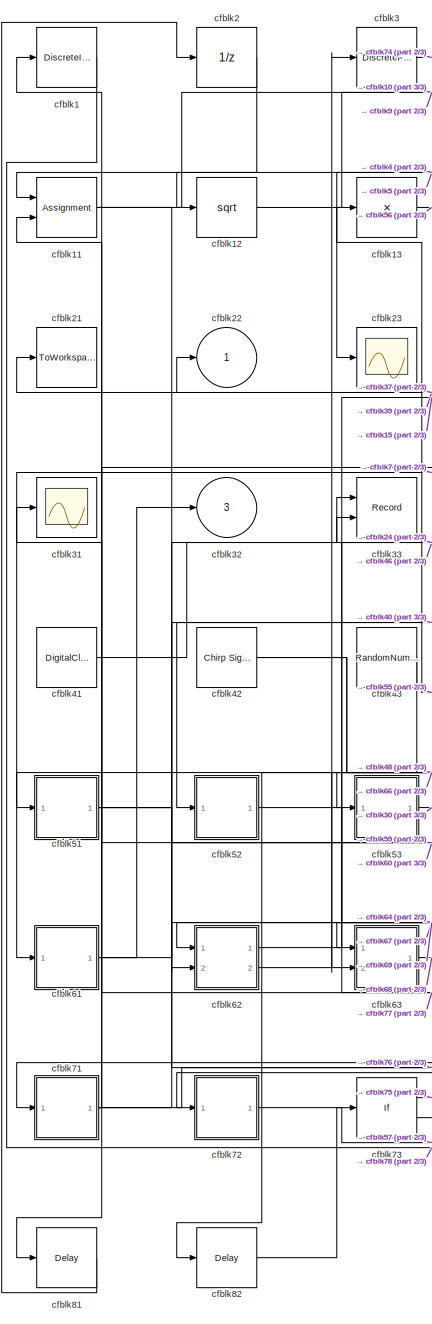
[diagram: root canvas - part 1/3, left side, full height]
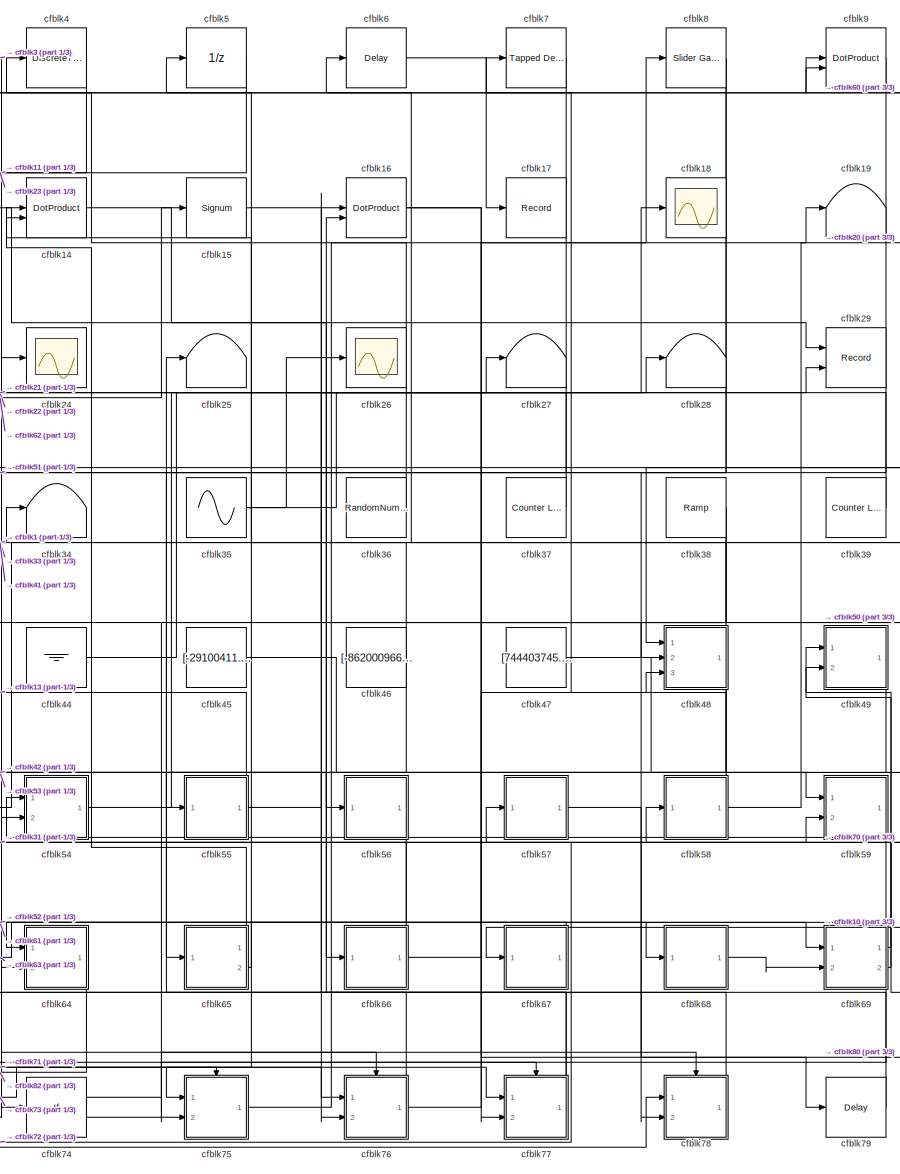
[diagram: root canvas - part 2/3, center side, full height]
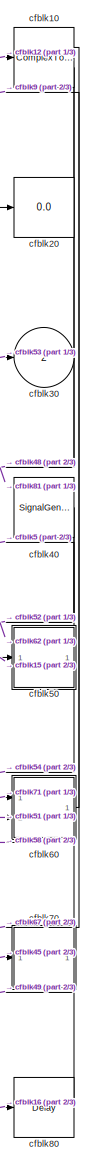
[diagram: root canvas - part 3/3, right side, full height]
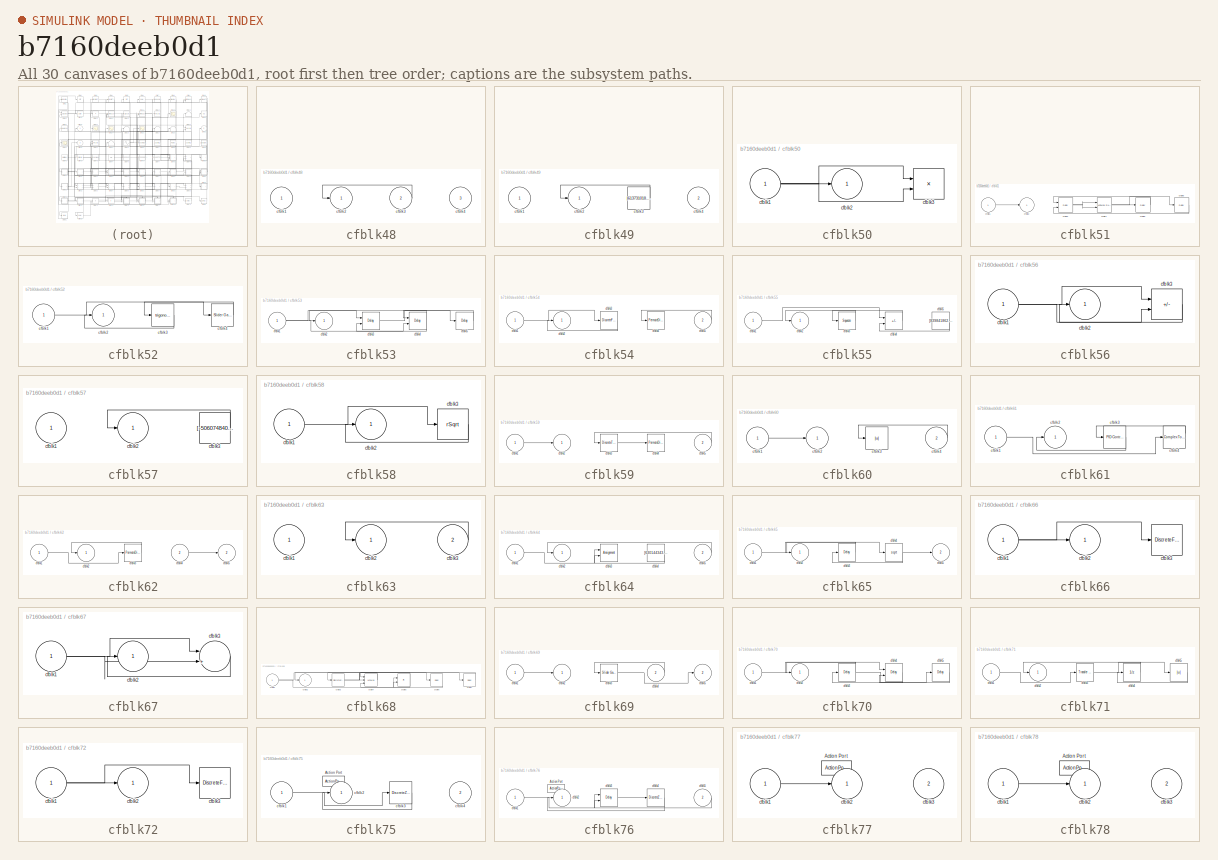
[diagram: thumbnail index - all 30 canvases of the model, root first then tree order]
MODEL slx_b7160deeb0d1
KIND model
CONFIG AbsTol = auto
CONFIG EnableMultiTasking = off
CONFIG FixedStep = auto
CONFIG MaxStep = auto
CONFIG MinStep = auto
CONFIG RelTol = 1e-3
CONFIG SampleTimeConstraint = Unconstrained
CONFIG SolverName = VariableStepAuto
CONFIG StartTime = 0.0
CONFIG StopTime = 10.0
BLOCK [DiscreteIntegrator] cfblk1
  ICPrevOutput = DiscIntNeverNeededParam
  ICPrevScaledInput = DiscIntNeverNeededParam
  InitialConditionSetting = Auto
  Ports = [1, 1]
BLOCK [ComplexToRealImag] cfblk10
  Ports = [1, 2]
BLOCK [Assignment] cfblk11
  DiagnosticForDimensions = Warning
  IndexOptions = Index vector (dialog)
  Indices = 1
  OutputSizes = 1
  Ports = [2, 1]
BLOCK [Sqrt] cfblk12
BLOCK [Product] cfblk13
  Inputs = *
  Ports = [1, 1]
BLOCK [DotProduct] cfblk14
  OutDataTypeStr = Inherit: Inherit via internal rule
BLOCK [Signum] cfblk15
BLOCK [DotProduct] cfblk16
  OutDataTypeStr = Inherit: Inherit via internal rule
BLOCK [Record] cfblk17
  FileSettingsInternal = {"entries":[{"content":{"excelSettings":{"content":{},"type":"Streamout.ExcelSettings"}},"type":"Streamout.FileSettingStorage","uuid":"fc1a8ae5-f9e8-4fe5-bdf4-1e206a54b291"}],"packageUris":["http://schema.mathworks.com/mf0/streamout_blocks/R2020a"],"version":"1.0"}
  Ports = [1]
  SignalsInternal = {"entries":[{"content":{"signals":[{"content":{"blockPath":["sampleModel187/cfblk17"],"channel":[],"dimensions":[1],"domain":"sampleModel187/cfblk17","lineColor":"#d95319","plots":[1],"port":1,"sid":[""],"signalID":7009,"signalName":"cfblk6"},"type":"RecordBlkView.Signal","uuid":"a0e15be2-1bcc-4cfc-9ff8-bd1e4d51e042"}]},"type":"RecordBlkView.InputSignals","uuid":"3d8c80d8-74ea-49cf-8dca-ff953d23ae...<+96ch>
  VisualizationBindings = {"sparklinesplugin":{"info":[{"bindingParametersList":[],"subplotID":1}]}}
BLOCK [Scope] cfblk18
  Floating = off
  NumInputPorts = 1
  Ports = [1]
BLOCK [Terminator] cfblk19
BLOCK [UnitDelay] cfblk2
  HasFrameUpgradeWarning = on
BLOCK [Display] cfblk20
  Decimation = 1
  Ports = [1]
BLOCK [ToWorkspace] cfblk21
  FixptAsFi = on
  MaxDataPoints = inf
  Ports = [1]
  SampleTime = -1
  SaveFormat = Timeseries
  VariableName = pqswixq
BLOCK [Outport] cfblk22
BLOCK [Scope] cfblk23
  Floating = off
  NumInputPorts = 1
  Ports = [1]
BLOCK [Scope] cfblk24
  Floating = off
  NumInputPorts = 1
  Ports = [1]
BLOCK [Terminator] cfblk25
BLOCK [Scope] cfblk26
  Floating = off
  NumInputPorts = 1
  Ports = [1]
BLOCK [Terminator] cfblk27
BLOCK [Terminator] cfblk28
BLOCK [Record] cfblk29
  CompatibilityTag = XY
  FileSettingsInternal = {"entries":[{"content":{"excelSettings":{"content":{},"type":"Streamout.ExcelSettings"}},"type":"Streamout.FileSettingStorage","uuid":"442cfed6-b428-4296-b731-16461bc16b9e"}],"packageUris":["http://schema.mathworks.com/mf0/streamout_blocks/R2020a"],"version":"1.0"}
  Layout = [1 1]
  Ports = [2]
  SignalsInternal = {"entries":[{"content":{"signals":[{"content":{"blockPath":["sampleModel187/cfblk29"],"channel":[],"dimensions":[1],"domain":"sampleModel187/cfblk29","lineColor":"#a2142f","plots":[1],"port":1,"sid":[""],"signalID":7013,"signalName":"cfblk14"},"type":"RecordBlkView.Signal","uuid":"7f7e597a-58f6-4f39-b89b-6fa5513463cd"},{"content":{"blockPath":["sampleModel187/cfblk29"],"channel":[],"dimensions":[1...<+383ch>
  VisualizationBindings = {"xyplotplugin":{"info":[{"series":[{"bindingParametersList":[{"parameter":"X-Axis","signalID":7013,"signalName":"cfblk14"},{"parameter":"Y-Axis","signalID":7017,"signalName":"cfblk35"}],"seriesID":40900}],"subplotID":1}]}}
BLOCK [DiscreteFir] cfblk3
  InputPortMap = u0
  OutputPortMap = o0
  Ports = [1, 1]
  SampleTime = 1
BLOCK [Outport] cfblk30
  Port = 2
BLOCK [Scope] cfblk31
  Floating = off
  NumInputPorts = 1
  Ports = [1]
BLOCK [Outport] cfblk32
  Port = 3
BLOCK [Record] cfblk33
  CompatibilityTag = XY
  FileSettingsInternal = {"entries":[{"content":{"excelSettings":{"content":{},"type":"Streamout.ExcelSettings"}},"type":"Streamout.FileSettingStorage","uuid":"6813dc0c-da85-4995-987b-cf181cce3f56"}],"packageUris":["http://schema.mathworks.com/mf0/streamout_blocks/R2020a"],"version":"1.0"}
  Layout = [1 1]
  Ports = [2]
  SignalsInternal = {"entries":[{"content":{"signals":[{"content":{"blockPath":["sampleModel187/cfblk33"],"channel":[],"dimensions":[1],"domain":"sampleModel187/cfblk33","lineColor":"#a2142f","plots":[1],"port":1,"sid":[""],"signalID":7021,"signalName":"cfblk51"},"type":"RecordBlkView.Signal","uuid":"0b49e028-e18d-4d9a-83a4-6c0870952cad"},{"content":{"blockPath":["sampleModel187/cfblk33"],"channel":[],"dimensions":[1...<+383ch>
  VisualizationBindings = {"xyplotplugin":{"info":[{"series":[{"bindingParametersList":[{"parameter":"X-Axis","signalID":7021,"signalName":"cfblk51"},{"parameter":"Y-Axis","signalID":7025,"signalName":"cfblk46"}],"seriesID":1856}],"subplotID":1}]}}
BLOCK [Terminator] cfblk34
BLOCK [Sin] cfblk35
  Amplitude = [317053556.111391]
  Bias = [742690337.513964]
  Ports = [0, 1]
  SampleTime = 0
BLOCK [RandomNumber] cfblk36
  Mean = [77071.071490]
  SampleTime = 0.1
  Seed = [984000208.000000]
  Variance = [36157.270666]
BLOCK [Reference] cfblk37  REF=simulink/Sources/Counter
Limited
  Ports = [0, 1]
  SourceBlock = simulink/Sources/Counter\nLimited
  SourceProductBaseCode = SL
  SourceType = Counter Limited
BLOCK [Reference] cfblk38  REF=simulink/Sources/Ramp
  Ports = [0, 1]
  SourceBlock = simulink/Sources/Ramp
  SourceProductBaseCode = SL
  SourceType = Ramp
BLOCK [Reference] cfblk39  REF=simulink/Sources/Counter
Limited
  Ports = [0, 1]
  SourceBlock = simulink/Sources/Counter\nLimited
  SourceProductBaseCode = SL
  SourceType = Counter Limited
BLOCK [DiscreteTransferFcn] cfblk4
  InputPortMap = u0
  Ports = [1, 1]
  SampleTime = 1
BLOCK [SignalGenerator] cfblk40
  Amplitude = [-571267794.185304]
  Ports = [0, 1]
  WaveForm = sawtooth
BLOCK [DigitalClock] cfblk41
BLOCK [Reference] cfblk42  REF=simulink/Sources/Chirp Signal
  Ports = [0, 1]
  SourceBlock = simulink/Sources/Chirp Signal
  SourceProductBaseCode = SL
  SourceType = chirp
BLOCK [RandomNumber] cfblk43
  Mean = [4117.333607]
  SampleTime = 0.1
  Seed = [309807594.000000]
  Variance = [38168.376727]
BLOCK [Ground] cfblk44
BLOCK [Constant] cfblk45
  SampleTime = 1
  Value = [-29100411.862656]
BLOCK [Constant] cfblk46
  SampleTime = 1
  Value = [-862000966.392325]
BLOCK [Constant] cfblk47
  SampleTime = 1
  Value = [744403745.632310]
BLOCK [SubSystem] cfblk48
  Ports = [3, 1]
  RequestExecContextInheritance = off
BLOCK [Inport] cfblk48/cfblk1
BLOCK [Outport] cfblk48/cfblk2
BLOCK [Inport] cfblk48/cfblk3
  Port = 2
BLOCK [Inport] cfblk48/cfblk4
  Port = 3
BLOCK [SubSystem] cfblk49
  Ports = [2, 1]
  RequestExecContextInheritance = off
BLOCK [Inport] cfblk49/cfblk1
BLOCK [Outport] cfblk49/cfblk2
BLOCK [Constant] cfblk49/cfblk3
  SampleTime = 1
  Value = [613731018.959351]
BLOCK [Inport] cfblk49/cfblk4
  Port = 2
BLOCK [UnitDelay] cfblk5
  HasFrameUpgradeWarning = on
BLOCK [SubSystem] cfblk50
  Ports = [1, 1]
  RequestExecContextInheritance = off
BLOCK [Inport] cfblk50/cfblk1
BLOCK [Outport] cfblk50/cfblk2
BLOCK [Product] cfblk50/cfblk3
  Inputs = **
  Ports = [2, 1]
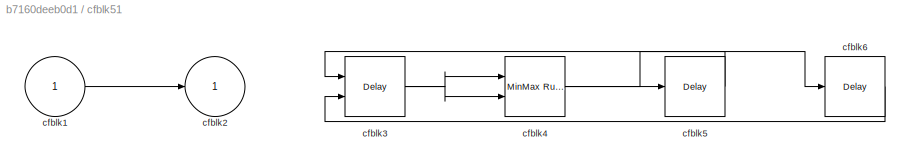
BLOCK [SubSystem] cfblk51
  Ports = [1, 1]
  RequestExecContextInheritance = off
BLOCK [Inport] cfblk51/cfblk1
BLOCK [Outport] cfblk51/cfblk2
BLOCK [Delay] cfblk51/cfblk3
  DelayLengthSource = Input port
  InputPortMap = u0,p1
  Ports = [2, 1]
  SampleTime = 1
BLOCK [Reference] cfblk51/cfblk4  REF=simulink/Math
Operations/MinMax
Running
Resettable
  Ports = [2, 1]
  SourceBlock = simulink/Math\nOperations/MinMax\nRunning\nResettable
  SourceProductBaseCode = SL
  SourceType = MinMax Running Resettable
BLOCK [Delay] cfblk51/cfblk5
  InputPortMap = u0
  Ports = [1, 1]
  SampleTime = 1
BLOCK [Delay] cfblk51/cfblk6
  InputPortMap = u0
  Ports = [1, 1]
  SampleTime = 1
BLOCK [SubSystem] cfblk52
  Ports = [1, 1]
  RequestExecContextInheritance = off
BLOCK [Inport] cfblk52/cfblk1
BLOCK [Outport] cfblk52/cfblk2
BLOCK [Trigonometry] cfblk52/cfblk3
  Ports = [1, 1]
BLOCK [Reference] cfblk52/cfblk4  REF=simulink/Math
Operations/Slider
Gain
  Ports = [1, 1]
  SourceBlock = simulink/Math\nOperations/Slider\nGain
  SourceProductBaseCode = SL
  SourceType = Slider Gain
BLOCK [SubSystem] cfblk53
  Ports = [1, 1]
  RequestExecContextInheritance = off
BLOCK [Inport] cfblk53/cfblk1
BLOCK [Outport] cfblk53/cfblk2
BLOCK [Delay] cfblk53/cfblk3
  InputPortMap = u0,e6
  Ports = [2, 1]
  SampleTime = 1
  ShowEnablePort = on
BLOCK [Delay] cfblk53/cfblk4
  InputPortMap = u0,e6
  Ports = [2, 1]
  SampleTime = 1
  ShowEnablePort = on
BLOCK [Delay] cfblk53/cfblk5
  InputPortMap = u0
  Ports = [1, 1]
  SampleTime = 1
BLOCK [SubSystem] cfblk54
  Ports = [2, 1]
  RequestExecContextInheritance = off
BLOCK [Inport] cfblk54/cfblk1
BLOCK [Outport] cfblk54/cfblk2
BLOCK [DiscreteFilter] cfblk54/cfblk3
  InputPortMap = u0
  Ports = [1, 1]
  SampleTime = 1
BLOCK [PermuteDimensions] cfblk54/cfblk4
BLOCK [Inport] cfblk54/cfblk5
  Port = 2
BLOCK [SubSystem] cfblk55
  Ports = [1, 1]
  RequestExecContextInheritance = off
BLOCK [Inport] cfblk55/cfblk1
BLOCK [Outport] cfblk55/cfblk2
BLOCK [Squeeze] cfblk55/cfblk3
BLOCK [Sum] cfblk55/cfblk4
  IconShape = rectangular
  Inputs = -+
  Ports = [2, 1]
BLOCK [Constant] cfblk55/cfblk5
  SampleTime = 1
  Value = [839841862.975559]
BLOCK [SubSystem] cfblk56
  Ports = [1, 1]
  RequestExecContextInheritance = off
BLOCK [Inport] cfblk56/cfblk1
BLOCK [Outport] cfblk56/cfblk2
BLOCK [Sum] cfblk56/cfblk3
  IconShape = rectangular
  Inputs = +-
  Ports = [2, 1]
BLOCK [SubSystem] cfblk57
  Ports = [1, 1]
  RequestExecContextInheritance = off
BLOCK [Inport] cfblk57/cfblk1
BLOCK [Outport] cfblk57/cfblk2
BLOCK [Constant] cfblk57/cfblk3
  SampleTime = 1
  Value = [-506074840.334967]
BLOCK [SubSystem] cfblk58
  Ports = [1, 1]
  RequestExecContextInheritance = off
BLOCK [Inport] cfblk58/cfblk1
BLOCK [Outport] cfblk58/cfblk2
BLOCK [Sqrt] cfblk58/cfblk3
  AlgorithmType = Newton-Raphson
  Operator = rSqrt
BLOCK [SubSystem] cfblk59
  Ports = [2, 1]
  RequestExecContextInheritance = off
BLOCK [Inport] cfblk59/cfblk1
BLOCK [Outport] cfblk59/cfblk2
BLOCK [DiscreteTransferFcn] cfblk59/cfblk3
  InputPortMap = u0
  Ports = [1, 1]
  SampleTime = 1
BLOCK [PermuteDimensions] cfblk59/cfblk4
BLOCK [Inport] cfblk59/cfblk5
  Port = 2
BLOCK [Delay] cfblk6
  InputPortMap = u0
  Ports = [1, 1]
  SampleTime = 1
BLOCK [SubSystem] cfblk60
  Ports = [2, 1]
  RequestExecContextInheritance = off
BLOCK [Inport] cfblk60/cfblk1
BLOCK [Outport] cfblk60/cfblk2
BLOCK [Abs] cfblk60/cfblk3
  SaturateOnIntegerOverflow = off
BLOCK [Inport] cfblk60/cfblk4
  Port = 2
BLOCK [SubSystem] cfblk61
  Ports = [1, 1]
  RequestExecContextInheritance = off
BLOCK [Inport] cfblk61/cfblk1
BLOCK [Outport] cfblk61/cfblk2
BLOCK [Reference] cfblk61/cfblk3  REF=slpidlib/PID Controller
  Ports = [1, 1]
  SourceBlock = slpidlib/PID Controller
  SourceProductBaseCode = SL
  SourceType = PID 1dof
BLOCK [ComplexToMagnitudeAngle] cfblk61/cfblk4
  Ports = [1, 2]
BLOCK [SubSystem] cfblk62
  Ports = [2, 2]
  RequestExecContextInheritance = off
BLOCK [Inport] cfblk62/cfblk1
BLOCK [Outport] cfblk62/cfblk2
BLOCK [PermuteDimensions] cfblk62/cfblk3
BLOCK [Inport] cfblk62/cfblk4
  Port = 2
BLOCK [Outport] cfblk62/cfblk5
  Port = 2
BLOCK [SubSystem] cfblk63
  Ports = [2, 1]
  RequestExecContextInheritance = off
BLOCK [Inport] cfblk63/cfblk1
BLOCK [Outport] cfblk63/cfblk2
BLOCK [Inport] cfblk63/cfblk3
  Port = 2
BLOCK [SubSystem] cfblk64
  Ports = [2, 1]
  RequestExecContextInheritance = off
BLOCK [Inport] cfblk64/cfblk1
BLOCK [Outport] cfblk64/cfblk2
BLOCK [Assignment] cfblk64/cfblk3
  DiagnosticForDimensions = Warning
  IndexOptions = Index vector (dialog)
  Indices = 1
  OutputSizes = 1
  Ports = [2, 1]
BLOCK [Constant] cfblk64/cfblk4
  SampleTime = 1
  Value = [630144343.579060]
BLOCK [Inport] cfblk64/cfblk5
  Port = 2
BLOCK [SubSystem] cfblk65
  Ports = [1, 2]
  RequestExecContextInheritance = off
BLOCK [Inport] cfblk65/cfblk1
BLOCK [Outport] cfblk65/cfblk2
BLOCK [Delay] cfblk65/cfblk3
  InputPortMap = u0
  Ports = [1, 1]
  SampleTime = 1
BLOCK [Sqrt] cfblk65/cfblk4
BLOCK [Outport] cfblk65/cfblk5
  Port = 2
BLOCK [SubSystem] cfblk66
  Ports = [1, 1]
  RequestExecContextInheritance = off
BLOCK [Inport] cfblk66/cfblk1
BLOCK [Outport] cfblk66/cfblk2
BLOCK [DiscreteFilter] cfblk66/cfblk3
  InputPortMap = u0
  Ports = [1, 1]
  SampleTime = 1
BLOCK [SubSystem] cfblk67
  Ports = [1, 1]
  RequestExecContextInheritance = off
BLOCK [Inport] cfblk67/cfblk1
BLOCK [Outport] cfblk67/cfblk2
BLOCK [Sum] cfblk67/cfblk3
  Inputs = |++
  Ports = [2, 1]
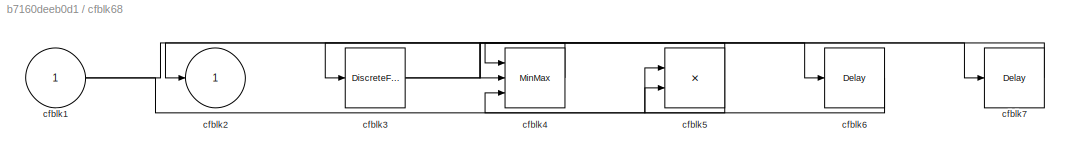
BLOCK [SubSystem] cfblk68
  Ports = [1, 1]
  RequestExecContextInheritance = off
BLOCK [Inport] cfblk68/cfblk1
BLOCK [Outport] cfblk68/cfblk2
BLOCK [DiscreteFilter] cfblk68/cfblk3
  InputPortMap = u0
  Ports = [1, 1]
  SampleTime = 1
BLOCK [MinMax] cfblk68/cfblk4
  Inputs = 3
  Ports = [3, 1]
BLOCK [Product] cfblk68/cfblk5
  Inputs = **
  Ports = [2, 1]
BLOCK [Delay] cfblk68/cfblk6
  InputPortMap = u0
  Ports = [1, 1]
  SampleTime = 1
BLOCK [Delay] cfblk68/cfblk7
  InputPortMap = u0
  Ports = [1, 1]
  SampleTime = 1
BLOCK [SubSystem] cfblk69
  Ports = [2, 2]
  RequestExecContextInheritance = off
BLOCK [Inport] cfblk69/cfblk1
BLOCK [Outport] cfblk69/cfblk2
BLOCK [Reference] cfblk69/cfblk3  REF=simulink/Math
Operations/Slider
Gain
  Ports = [1, 1]
  SourceBlock = simulink/Math\nOperations/Slider\nGain
  SourceProductBaseCode = SL
  SourceType = Slider Gain
BLOCK [Inport] cfblk69/cfblk4
  Port = 2
BLOCK [Outport] cfblk69/cfblk5
  Port = 2
BLOCK [Reference] cfblk7  REF=simulink/Discrete/Tapped Delay
  Ports = [1, 1]
  SourceBlock = simulink/Discrete/Tapped Delay
  SourceProductBaseCode = SL
  SourceType = Tapped Delay Line
BLOCK [SubSystem] cfblk70
  Ports = [1, 1]
  RequestExecContextInheritance = off
BLOCK [Inport] cfblk70/cfblk1
BLOCK [Outport] cfblk70/cfblk2
BLOCK [Delay] cfblk70/cfblk3
  InputPortMap = u0
  Ports = [1, 1]
  SampleTime = 1
BLOCK [Delay] cfblk70/cfblk4
  DelayLengthSource = Input port
  InputPortMap = u0,p1
  Ports = [2, 1]
  SampleTime = 1
BLOCK [Delay] cfblk70/cfblk5
  InputPortMap = u0
  Ports = [1, 1]
  SampleTime = 1
BLOCK [SubSystem] cfblk71
  Ports = [1, 1]
  RequestExecContextInheritance = off
BLOCK [Inport] cfblk71/cfblk1
BLOCK [Outport] cfblk71/cfblk2
BLOCK [Reference] cfblk71/cfblk3  REF=simulink/Discrete/Transfer Fcn
First Order
  Ports = [1, 1]
  SourceBlock = simulink/Discrete/Transfer Fcn\nFirst Order
  SourceProductBaseCode = SL
  SourceType = First Order Transfer Fcn
BLOCK [UnitDelay] cfblk71/cfblk4
  HasFrameUpgradeWarning = on
BLOCK [Abs] cfblk71/cfblk5
  SaturateOnIntegerOverflow = off
BLOCK [SubSystem] cfblk72
  Ports = [1, 1]
  RequestExecContextInheritance = off
BLOCK [Inport] cfblk72/cfblk1
BLOCK [Outport] cfblk72/cfblk2
BLOCK [DiscreteFilter] cfblk72/cfblk3
  InputPortMap = u0
  Ports = [1, 1]
  SampleTime = 1
BLOCK [If] cfblk73
  IfExpression = u1 >= 0
  Ports = [1, 2]
  SampleTime = 1
BLOCK [If] cfblk74
  IfExpression = u1 >= 0
  Ports = [1, 2]
  SampleTime = 1
BLOCK [SubSystem] cfblk75
  Ports = [2, 1, 0, 0, 0, 0, 0, 1]
  RequestExecContextInheritance = off
  TreatAsAtomicUnit = on
BLOCK [ActionPort] cfblk75/Action Port
  ActionPortLabel = if(u1 >= 0)
BLOCK [Inport] cfblk75/cfblk1
BLOCK [Outport] cfblk75/cfblk2
BLOCK [DiscreteZeroPole] cfblk75/cfblk3
  Gain = 1
  Poles = [0 0.5]
  SampleTime = -1
BLOCK [Inport] cfblk75/cfblk4
  Port = 2
BLOCK [SubSystem] cfblk76
  Ports = [2, 1, 0, 0, 0, 0, 0, 1]
  RequestExecContextInheritance = off
  TreatAsAtomicUnit = on
BLOCK [ActionPort] cfblk76/Action Port
  ActionPortLabel = else
BLOCK [Inport] cfblk76/cfblk1
BLOCK [Outport] cfblk76/cfblk2
BLOCK [Delay] cfblk76/cfblk3
  DelayLengthSource = Input port
  InputPortMap = u0,p1
  Ports = [2, 1]
BLOCK [DiscreteZeroPole] cfblk76/cfblk4
  Gain = 1
  Poles = [0 0.5]
  SampleTime = -1
BLOCK [Inport] cfblk76/cfblk5
  Port = 2
BLOCK [SubSystem] cfblk77
  Ports = [2, 1, 0, 0, 0, 0, 0, 1]
  RequestExecContextInheritance = off
  TreatAsAtomicUnit = on
BLOCK [ActionPort] cfblk77/Action Port
  ActionPortLabel = if(u1 >= 0)
BLOCK [Inport] cfblk77/cfblk1
BLOCK [Outport] cfblk77/cfblk2
BLOCK [Inport] cfblk77/cfblk3
  Port = 2
BLOCK [SubSystem] cfblk78
  Ports = [2, 1, 0, 0, 0, 0, 0, 1]
  RequestExecContextInheritance = off
  TreatAsAtomicUnit = on
BLOCK [ActionPort] cfblk78/Action Port
  ActionPortLabel = else
BLOCK [Inport] cfblk78/cfblk1
BLOCK [Outport] cfblk78/cfblk2
BLOCK [Inport] cfblk78/cfblk3
  Port = 2
BLOCK [Delay] cfblk79
  InputPortMap = u0
  Ports = [1, 1]
  SampleTime = 1
BLOCK [Reference] cfblk8  REF=simulink/Math
Operations/Slider
Gain
  Ports = [1, 1]
  SourceBlock = simulink/Math\nOperations/Slider\nGain
  SourceProductBaseCode = SL
  SourceType = Slider Gain
BLOCK [Delay] cfblk80
  InputPortMap = u0
  Ports = [1, 1]
  SampleTime = 1
BLOCK [Delay] cfblk81
  InputPortMap = u0
  Ports = [1, 1]
  SampleTime = 1
BLOCK [Delay] cfblk82
  InputPortMap = u0
  Ports = [1, 1]
  SampleTime = 1
BLOCK [DotProduct] cfblk9
  OutDataTypeStr = Inherit: Inherit via internal rule
LINE cfblk10:1 -> cfblk67:1
NET cfblk10:2 -> cfblk48:1, cfblk81:1
NET cfblk11:1 -> cfblk76:2, cfblk9:2
LINE cfblk12:1 -> cfblk10:1
LINE cfblk13:1 -> cfblk56:1
LINE cfblk14:1 -> cfblk29:1
LINE cfblk15:1 -> cfblk50:1
NET cfblk16:1 -> cfblk48:2, cfblk80:1
LINE cfblk1:1 -> cfblk78:1
LINE cfblk2:1 -> cfblk12:1
NET cfblk35:1 -> cfblk26:1, cfblk29:2
LINE cfblk36:1 -> cfblk4:1
LINE cfblk37:1 -> cfblk21:1
NET cfblk38:1 -> cfblk75:2, cfblk77:2
LINE cfblk39:1 -> cfblk22:1
LINE cfblk3:1 -> cfblk74:1
NET cfblk40:1 -> cfblk52:1, cfblk62:2
LINE cfblk41:1 -> cfblk24:1
NET cfblk42:1 -> cfblk66:1, cfblk76:1
LINE cfblk43:1 -> cfblk63:2
LINE cfblk44:1 -> cfblk18:1
LINE cfblk45:1 -> cfblk70:1
NET cfblk46:1 -> cfblk33:2, cfblk61:1
LINE cfblk47:1 -> cfblk59:1
LINE cfblk48/cfblk3:1 -> cfblk48/cfblk2:1
NET cfblk48:1 -> cfblk53:1, cfblk6:1, cfblk72:1
LINE cfblk49/cfblk3:1 -> cfblk49/cfblk2:1
LINE cfblk49:1 -> cfblk55:1
LINE cfblk4:1 -> cfblk23:1
NET cfblk50/cfblk1:1 -> cfblk50/cfblk2:1, cfblk50/cfblk3:1, cfblk50/cfblk3:2
NET cfblk50:1 -> cfblk54:2, cfblk5:1
LINE cfblk51/cfblk1:1 -> cfblk51/cfblk2:1
NET cfblk51/cfblk3:1 -> cfblk51/cfblk4:1, cfblk51/cfblk4:2
NET cfblk51/cfblk4:1 -> cfblk51/cfblk5:1, cfblk51/cfblk6:1
LINE cfblk51/cfblk5:1 -> cfblk51/cfblk3:1
LINE cfblk51/cfblk6:1 -> cfblk51/cfblk3:2
NET cfblk51:1 -> cfblk33:1, cfblk59:2, cfblk60:2
LINE cfblk52/cfblk1:1 -> cfblk52/cfblk4:1
LINE cfblk52/cfblk3:1 -> cfblk52/cfblk2:1
LINE cfblk52/cfblk4:1 -> cfblk52/cfblk3:1
LINE cfblk52:1 -> cfblk69:1
NET cfblk53/cfblk1:1 -> cfblk53/cfblk3:1, cfblk53/cfblk4:2
LINE cfblk53/cfblk3:1 -> cfblk53/cfblk5:1
NET cfblk53/cfblk4:1 -> cfblk53/cfblk2:1, cfblk53/cfblk3:2
LINE cfblk53/cfblk5:1 -> cfblk53/cfblk4:1
LINE cfblk53:1 -> cfblk30:1
LINE cfblk54/cfblk1:1 -> cfblk54/cfblk3:1
LINE cfblk54/cfblk3:1 -> cfblk54/cfblk2:1
LINE cfblk54/cfblk5:1 -> cfblk54/cfblk4:1
LINE cfblk54:1 -> cfblk28:1
LINE cfblk55/cfblk1:1 -> cfblk55/cfblk4:1
LINE cfblk55/cfblk3:1 -> cfblk55/cfblk2:1
LINE cfblk55/cfblk4:1 -> cfblk55/cfblk3:1
LINE cfblk55/cfblk5:1 -> cfblk55/cfblk4:2
NET cfblk55:1 -> cfblk13:1, cfblk27:1
NET cfblk56/cfblk1:1 -> cfblk56/cfblk3:1, cfblk56/cfblk3:2
LINE cfblk56/cfblk3:1 -> cfblk56/cfblk2:1
LINE cfblk56:1 -> cfblk62:1
LINE cfblk57/cfblk3:1 -> cfblk57/cfblk2:1
LINE cfblk57:1 -> cfblk79:1
LINE cfblk58/cfblk1:1 -> cfblk58/cfblk3:1
LINE cfblk58/cfblk3:1 -> cfblk58/cfblk2:1
NET cfblk58:1 -> cfblk20:1, cfblk7:1
LINE cfblk59/cfblk1:1 -> cfblk59/cfblk2:1
LINE cfblk59/cfblk3:1 -> cfblk59/cfblk4:1
LINE cfblk59/cfblk5:1 -> cfblk59/cfblk3:1
LINE cfblk59:1 -> cfblk75:1
LINE cfblk5:1 -> cfblk11:1
LINE cfblk60/cfblk1:1 -> cfblk60/cfblk2:1
LINE cfblk60/cfblk4:1 -> cfblk60/cfblk3:1
LINE cfblk60:1 -> cfblk9:1
LINE cfblk61/cfblk1:1 -> cfblk61/cfblk4:1
LINE cfblk61/cfblk3:1 -> cfblk61/cfblk2:1
LINE cfblk61/cfblk4:1 -> cfblk61/cfblk3:1
NET cfblk61:1 -> cfblk32:1, cfblk64:1
LINE cfblk62/cfblk1:1 -> cfblk62/cfblk3:1
LINE cfblk62/cfblk3:1 -> cfblk62/cfblk2:1
LINE cfblk62/cfblk4:1 -> cfblk62/cfblk5:1
LINE cfblk62:1 -> cfblk15:1
LINE cfblk62:2 -> cfblk3:1
LINE cfblk63/cfblk3:1 -> cfblk63/cfblk2:1
LINE cfblk63:1 -> cfblk68:1
LINE cfblk64/cfblk1:1 -> cfblk64/cfblk3:1
LINE cfblk64/cfblk4:1 -> cfblk64/cfblk3:2
LINE cfblk64/cfblk5:1 -> cfblk64/cfblk2:1
LINE cfblk64:1 -> cfblk82:1
LINE cfblk65/cfblk1:1 -> cfblk65/cfblk4:1
LINE cfblk65/cfblk3:1 -> cfblk65/cfblk2:1
NET cfblk65/cfblk4:1 -> cfblk65/cfblk3:1, cfblk65/cfblk5:1
LINE cfblk65:1 -> cfblk14:1
LINE cfblk65:2 -> cfblk14:2
NET cfblk66/cfblk1:1 -> cfblk66/cfblk2:1, cfblk66/cfblk3:1
NET cfblk66:1 -> cfblk19:1, cfblk31:1
NET cfblk67/cfblk1:1 -> cfblk67/cfblk3:1, cfblk67/cfblk3:2
LINE cfblk67/cfblk3:1 -> cfblk67/cfblk2:1
LINE cfblk67:1 -> cfblk63:1
NET cfblk68/cfblk1:1 -> cfblk68/cfblk4:2, cfblk68/cfblk5:1
NET cfblk68/cfblk3:1 -> cfblk68/cfblk6:1, cfblk68/cfblk7:1
LINE cfblk68/cfblk4:1 -> cfblk68/cfblk3:1
NET cfblk68/cfblk5:1 -> cfblk68/cfblk2:1, cfblk68/cfblk4:3
LINE cfblk68/cfblk6:1 -> cfblk68/cfblk5:2
LINE cfblk68/cfblk7:1 -> cfblk68/cfblk4:1
LINE cfblk68:1 -> cfblk69:2
LINE cfblk69/cfblk1:1 -> cfblk69/cfblk2:1
LINE cfblk69/cfblk3:1 -> cfblk69/cfblk5:1
LINE cfblk69/cfblk4:1 -> cfblk69/cfblk3:1
LINE cfblk69:1 -> cfblk49:1
NET cfblk69:2 -> cfblk54:1, cfblk71:1
LINE cfblk6:1 -> cfblk17:1
LINE cfblk70/cfblk1:1 -> cfblk70/cfblk4:1
NET cfblk70/cfblk3:1 -> cfblk70/cfblk2:1, cfblk70/cfblk5:1
LINE cfblk70/cfblk4:1 -> cfblk70/cfblk3:1
LINE cfblk70/cfblk5:1 -> cfblk70/cfblk4:2
LINE cfblk70:1 -> cfblk58:1
LINE cfblk71/cfblk1:1 -> cfblk71/cfblk3:1
LINE cfblk71/cfblk3:1 -> cfblk71/cfblk5:1
LINE cfblk71/cfblk4:1 -> cfblk71/cfblk2:1
LINE cfblk71/cfblk5:1 -> cfblk71/cfblk4:1
NET cfblk71:1 -> cfblk11:2, cfblk60:1, cfblk77:1
NET cfblk72/cfblk1:1 -> cfblk72/cfblk2:1, cfblk72/cfblk3:1
LINE cfblk72:1 -> cfblk57:1
LINE cfblk73:1 -> cfblk75:ifaction
LINE cfblk73:2 -> cfblk76:ifaction
LINE cfblk74:1 -> cfblk77:ifaction
LINE cfblk74:2 -> cfblk78:ifaction
LINE cfblk75/cfblk1:1 -> cfblk75/cfblk3:1
LINE cfblk75/cfblk3:1 -> cfblk75/cfblk2:1
LINE cfblk75:1 -> cfblk8:1
LINE cfblk76/cfblk1:1 -> cfblk76/cfblk3:1
LINE cfblk76/cfblk3:1 -> cfblk76/cfblk4:1
LINE cfblk76/cfblk4:1 -> cfblk76/cfblk2:1
LINE cfblk76/cfblk5:1 -> cfblk76/cfblk3:2
NET cfblk76:1 -> cfblk16:2, cfblk48:3
LINE cfblk77/cfblk1:1 -> cfblk77/cfblk2:1
NET cfblk77:1 -> cfblk1:1, cfblk34:1
LINE cfblk78/cfblk1:1 -> cfblk78/cfblk2:1
LINE cfblk78:1 -> cfblk25:1
LINE cfblk79:1 -> cfblk16:1
LINE cfblk7:1 -> cfblk51:1
LINE cfblk80:1 -> cfblk49:2
LINE cfblk81:1 -> cfblk2:1
LINE cfblk82:1 -> cfblk73:1
NET cfblk8:1 -> cfblk64:2, cfblk78:2
LINE cfblk9:1 -> cfblk65:1
note: NET lines group one-source signal fan-out (src -> all destinations, sorted); 1:1 wires keep LINE
